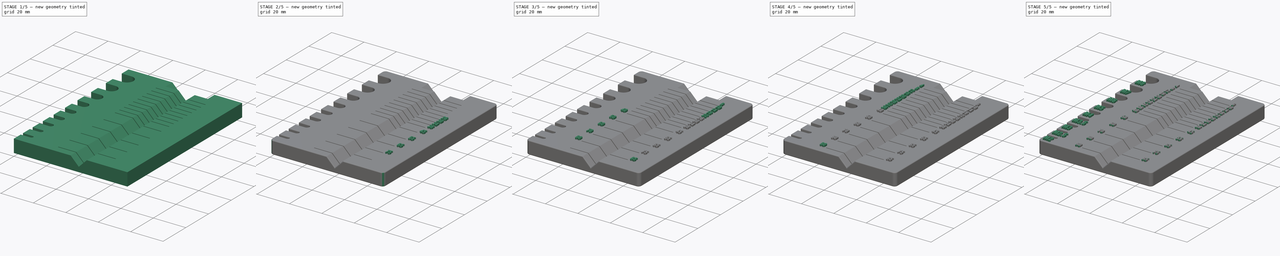
[diagram: build sequence overview — one tinted view per stage of 5, left to right]
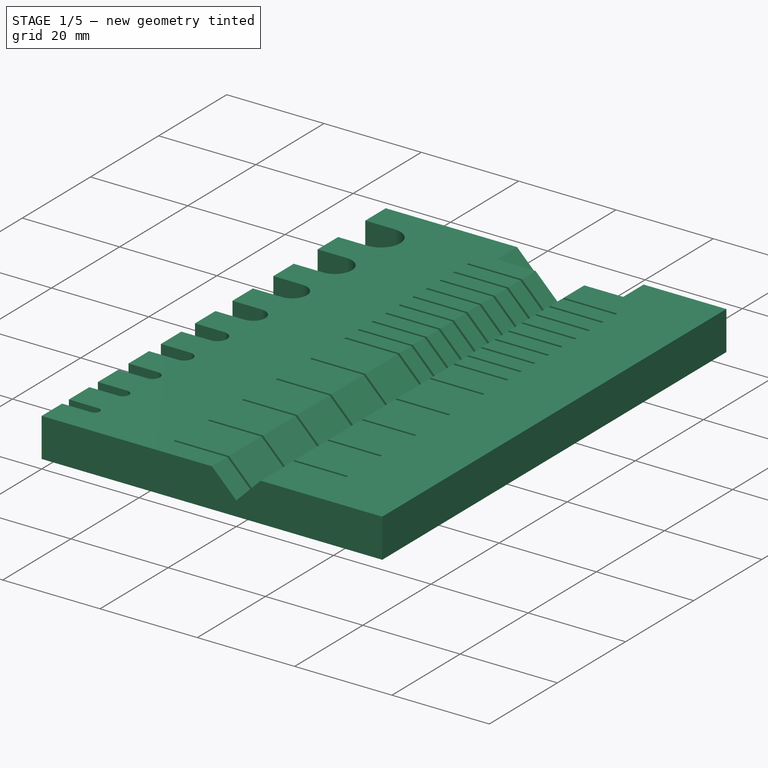
[diagram: stage 1 of 5 — iso view after this stage's code; geometry added in this stage tinted green]
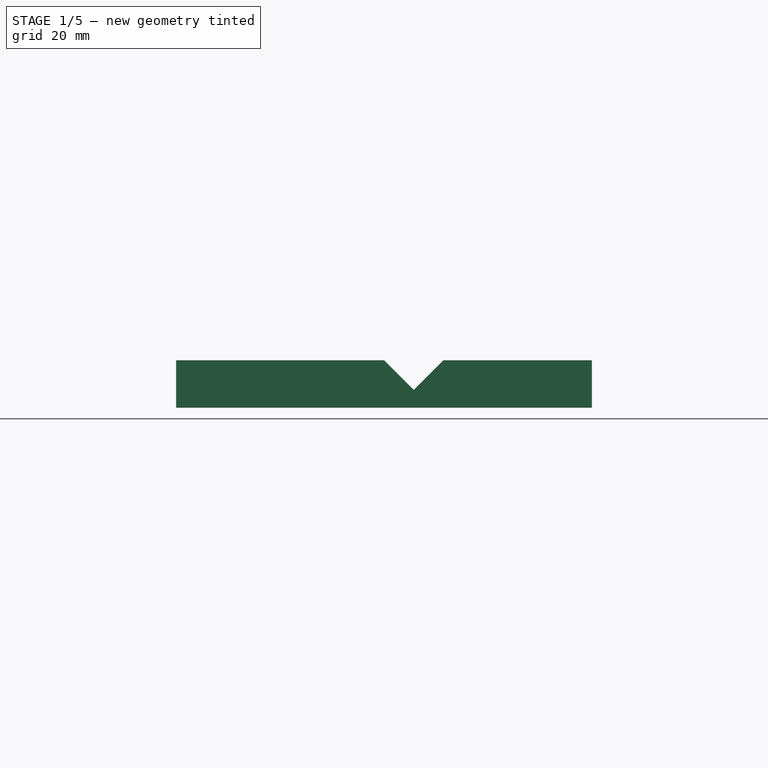
[diagram: stage 1 of 5 — front view after this stage's code; geometry added in this stage tinted green]
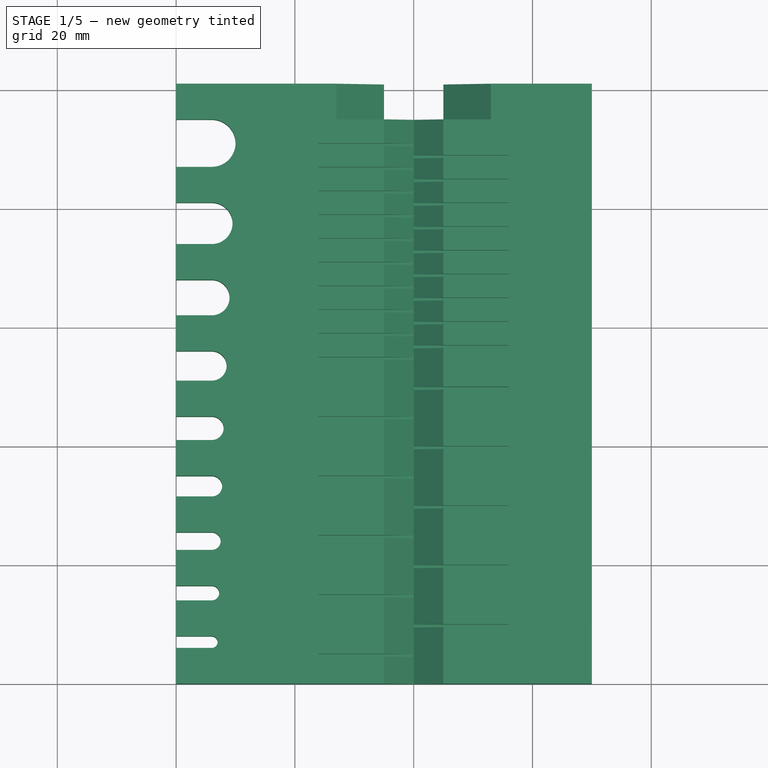
[diagram: stage 1 of 5 — top view after this stage's code; geometry added in this stage tinted green]
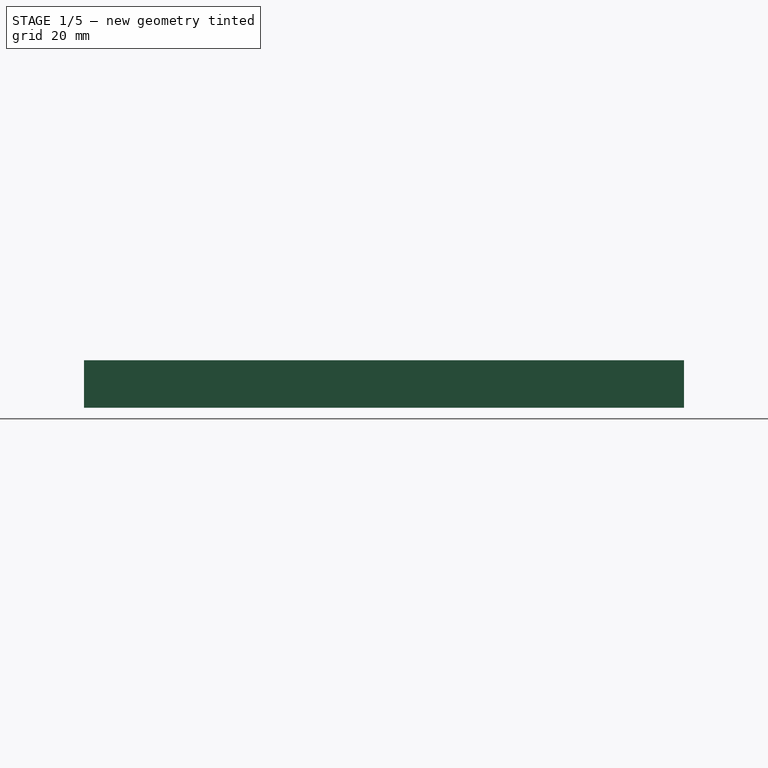
[diagram: stage 1 of 5 — right view after this stage's code; geometry added in this stage tinted green]
FCSTD DOCUMENT  (FreeCAD 0.19R24267 (Git))
Label: metric screw measure
License: All rights reserved
LicenseURL: http://en.wikipedia.org/wiki/All_rights_reserved
objects: Part::Part2DObjectPython×38, Part::Extrusion×38, Sketcher::SketchObject×7, PartDesign::Pocket×6, PartDesign::LinearPattern×4, Part::MultiFuse×2, PartDesign::Fillet×2, PartDesign::Pad×1, PartDesign::Body×1
note: 108 computed .brp shape members not serialized (recipe doc carries the construction recipe); baked Part::Feature solids carry a one-line shape summary decoded from their .brp

FEATURE [Sketcher::SketchObject] Sketch
  FullyConstrained = true
  MapMode = 5
  Support = -> [XY_Plane]
  sketch-geometry (48):
    g0: ArcOfCircle CenterX=6 CenterY=7 CenterZ=0 NormalX=0 NormalY=0 NormalZ=1 AngleXU=0 Radius=1 StartAngle=4.71239 EndAngle=7.85398
    g1: ArcOfCircle CenterX=6 CenterY=15.25 CenterZ=0 NormalX=0 NormalY=0 NormalZ=1 AngleXU=0 Radius=1.25 StartAngle=4.71239 EndAngle=7.85398
    g2: ArcOfCircle CenterX=6 CenterY=24 CenterZ=0 NormalX=0 NormalY=0 NormalZ=1 AngleXU=0 Radius=1.5 StartAngle=4.71239 EndAngle=7.85398
    g3: ArcOfCircle CenterX=6 CenterY=33.25 CenterZ=0 NormalX=0 NormalY=0 NormalZ=1 AngleXU=0 Radius=1.75 StartAngle=4.71239 EndAngle=7.85398
    g4: ArcOfCircle CenterX=6 CenterY=43 CenterZ=0 NormalX=0 NormalY=0 NormalZ=1 AngleXU=0 Radius=2 StartAngle=4.71239 EndAngle=7.85398
    g5: ArcOfCircle CenterX=6 CenterY=53.5 CenterZ=0 NormalX=0 NormalY=0 NormalZ=1 AngleXU=0 Radius=2.5 StartAngle=4.71239 EndAngle=7.85398
    g6: ArcOfCircle CenterX=6 CenterY=65 CenterZ=0 NormalX=0 NormalY=0 NormalZ=1 AngleXU=0 Radius=3 StartAngle=4.71239 EndAngle=7.85398
    g7: ArcOfCircle CenterX=6 CenterY=77.5 CenterZ=0 NormalX=0 NormalY=0 NormalZ=1 AngleXU=0 Radius=3.5 StartAngle=4.71239 EndAngle=7.85398
    g8: ArcOfCircle CenterX=6 CenterY=91 CenterZ=0 NormalX=0 NormalY=0 NormalZ=1 AngleXU=0 Radius=4 StartAngle=4.71239 EndAngle=7.85398
    g9: LineSegment StartX=6 StartY=8 StartZ=0 EndX=6 EndY=14 EndZ=0
    g10: LineSegment StartX=6 StartY=16.5 StartZ=0 EndX=6 EndY=22.5 EndZ=0
    g11: LineSegment StartX=6 StartY=25.5 StartZ=0 EndX=6 EndY=31.5 EndZ=0
    g12: LineSegment StartX=6 StartY=35 StartZ=0 EndX=6 EndY=41 EndZ=0
    g13: LineSegment StartX=6 StartY=45 StartZ=0 EndX=6 EndY=51 EndZ=0
    g14: LineSegment StartX=6 StartY=56 StartZ=0 EndX=6 EndY=62 EndZ=0
    g15: LineSegment StartX=6 StartY=68 StartZ=0 EndX=6 EndY=74 EndZ=0
    g16: LineSegment StartX=6 StartY=87 StartZ=0 EndX=6 EndY=81 EndZ=0
    g17: LineSegment StartX=6 StartY=8 StartZ=0 EndX=0 EndY=8 EndZ=0
    g18: LineSegment StartX=0 StartY=8 StartZ=0 EndX=0 EndY=14 EndZ=0
    g19: LineSegment StartX=0 StartY=14 StartZ=0 EndX=6 EndY=14 EndZ=0
    g20: LineSegment StartX=6 StartY=16.5 StartZ=0 EndX=0 EndY=16.5 EndZ=0
    g21: LineSegment StartX=0 StartY=16.5 StartZ=0 EndX=0 EndY=22.5 EndZ=0
    g22: LineSegment StartX=0 StartY=22.5 StartZ=0 EndX=6 EndY=22.5 EndZ=0
    g23: LineSegment StartX=6 StartY=25.5 StartZ=0 EndX=0 EndY=25.5 EndZ=0
    g24: LineSegment StartX=0 StartY=25.5 StartZ=0 EndX=0 EndY=31.5 EndZ=0
    g25: LineSegment StartX=0 StartY=31.5 StartZ=0 EndX=6 EndY=31.5 EndZ=0
    g26: LineSegment StartX=6 StartY=35 StartZ=0 EndX=0 EndY=35 EndZ=0
    g27: LineSegment StartX=0 StartY=35 StartZ=0 EndX=0 EndY=41 EndZ=0
    g28: LineSegment StartX=0 StartY=41 StartZ=0 EndX=6 EndY=41 EndZ=0
    g29: LineSegment StartX=6 StartY=45 StartZ=0 EndX=0 EndY=45 EndZ=0
    g30: LineSegment StartX=0 StartY=45 StartZ=0 EndX=0 EndY=51 EndZ=0
    g31: LineSegment StartX=0 StartY=51 StartZ=0 EndX=6 EndY=51 EndZ=0
    g32: LineSegment StartX=6 StartY=56 StartZ=0 EndX=0 EndY=56 EndZ=0
    g33: LineSegment StartX=0 StartY=56 StartZ=0 EndX=0 EndY=62 EndZ=0
    g34: LineSegment StartX=0 StartY=62 StartZ=0 EndX=6 EndY=62 EndZ=0
    g35: LineSegment StartX=6 StartY=68 StartZ=0 EndX=0 EndY=68 EndZ=0
    g36: LineSegment StartX=0 StartY=68 StartZ=0 EndX=0 EndY=74 EndZ=0
    g37: LineSegment StartX=0 StartY=74 StartZ=0 EndX=6 EndY=74 EndZ=0
    g38: LineSegment StartX=6 StartY=81 StartZ=0 EndX=0 EndY=81 EndZ=0
    g39: LineSegment StartX=0 StartY=81 StartZ=0 EndX=0 EndY=87 EndZ=0
    g40: LineSegment StartX=0 StartY=87 StartZ=0 EndX=6 EndY=87 EndZ=0
    g41: LineSegment StartX=6 StartY=95 StartZ=0 EndX=0 EndY=95 EndZ=0
    g42: LineSegment StartX=0 StartY=95 StartZ=0 EndX=0 EndY=101 EndZ=0
    g43: LineSegment StartX=6 StartY=6 StartZ=0 EndX=0 EndY=6 EndZ=0
    g44: LineSegment StartX=0 StartY=6 StartZ=0 EndX=0 EndY=0 EndZ=0
    g45: LineSegment StartX=0 StartY=101 StartZ=0 EndX=70 EndY=101 EndZ=0
    g46: LineSegment StartX=70 StartY=101 StartZ=0 EndX=70 EndY=0 EndZ=0
    g47: LineSegment StartX=70 StartY=0 StartZ=0 EndX=0 EndY=0 EndZ=0
  constraints (136):
    c: Vertical(g6,g6)
    c: Vertical(g6,g5)
    c: Vertical(g5,g6)
    c: Vertical(g6,g5)
    c: Vertical(g5,g5)
    c: Vertical(g5,g4)
    c: Vertical(g4,g4)
    c: Vertical(g4,g3)
    c: Vertical(g3,g4)
    c: Vertical(g4,g3)
    c: Vertical(g3,g3)
    c: Vertical(g3,g2)
    c: Vertical(g2,g2)
    c: Vertical(g2,g2)
    c: Vertical(g2,g1)
    c: Vertical(g1,g1)
    c: Vertical(g1,g1)
    c: Vertical(g1,g0)
    c: Vertical(g0,g0)
    c: Vertical(g0,g0)
    c: Diameter(g0) = 2
    c: Diameter(g1) = 2.5
    c: Diameter(g2) = 3
    c: Diameter(g3) = 3.5
    c: Diameter(g4) = 4
    c: Diameter(g5) = 5
    c: Diameter(g6) = 6
    c: Vertical(g8,g8)
    c: Vertical(g8,g8)
    c: Vertical(g8,g7)
    c: Vertical(g7,g7)
    c: Vertical(g7,g7)
    c: Vertical(g7,g6)
    c: Diameter(g7) = 7
    c: Diameter(g8) = 8
    c: Coincident(g9,g0)
    c: Coincident(g9,g1)
    c: Coincident(g10,g1)
    c: Coincident(g10,g2)
    c: Coincident(g11,g2)
    c: Coincident(g11,g3)
    c: Coincident(g12,g3)
    c: Coincident(g12,g4)
    c: Coincident(g13,g4)
    c: Coincident(g13,g5)
    c: Coincident(g14,g5)
    c: Coincident(g14,g6)
    c: Coincident(g15,g6)
    c: Coincident(g15,g7)
    c: Coincident(g16,g8)
    c: Coincident(g16,g7)
    c: Equal(g16,g15)
    c: Equal(g15,g14)
    c: Equal(g14,g13)
    c: Equal(g13,g12)
    c: Equal(g12,g11)
    c: Equal(g11,g10)
    c: Equal(g10,g9)
    c: DistanceY(g9,g9) = 6
    c: DistanceY(g0) = 6
    c: DistanceX(g0) = 6
    c: Tangent(g0,g17) = -1.5708
    c: Coincident(g17,g18)
    c: PointOnObject(g18,g-2)
    c: Vertical(g18)
    c: Coincident(g18,g19)
    c: Coincident(g19,g1)
    c: Horizontal(g19)
    c: Tangent(g1,g20) = -1.5708
    c: Coincident(g20,g21)
    c: PointOnObject(g21,g-2)
    c: Vertical(g21)
    c: Coincident(g21,g22)
    c: Coincident(g22,g2)
    c: Horizontal(g22)
    c: Tangent(g2,g23) = -1.5708
    c: Coincident(g23,g24)
    c: PointOnObject(g24,g-2)
    c: Vertical(g24)
    c: Coincident(g24,g25)
    c: Coincident(g25,g3)
    c: Horizontal(g25)
    c: Tangent(g3,g26) = -1.5708
    c: Coincident(g26,g27)
    c: PointOnObject(g27,g-2)
    c: Vertical(g27)
    c: Coincident(g27,g28)
    c: Coincident(g28,g4)
    c: Horizontal(g28)
    c: Tangent(g4,g29) = -1.5708
    c: Coincident(g29,g30)
    c: PointOnObject(g30,g-2)
    c: Vertical(g30)
    c: Coincident(g30,g31)
    c: Coincident(g31,g5)
    c: Horizontal(g31)
    c: Tangent(g5,g32) = -1.5708
    c: Coincident(g32,g33)
    c: PointOnObject(g33,g-2)
    c: Vertical(g33)
    c: Coincident(g33,g34)
    c: Coincident(g34,g6)
    c: Horizontal(g34)
    c: Tangent(g6,g35) = -1.5708
    c: Coincident(g35,g36)
    c: PointOnObject(g36,g-2)
    c: Vertical(g36)
    c: Coincident(g36,g37)
    c: Coincident(g37,g7)
    c: Horizontal(g37)
    c: Coincident(g38,g7)
    c: PointOnObject(g38,g-2)
    c: Horizontal(g38)
    c: Coincident(g39,g38)
    c: PointOnObject(g39,g-2)
    c: Coincident(g40,g39)
    c: Coincident(g40,g8)
    c: Horizontal(g40)
    c: Coincident(g41,g8)
    c: PointOnObject(g41,g-2)
    c: Horizontal(g41)
    c: Coincident(g42,g41)
    c: PointOnObject(g42,g-2)
    c: Tangent(g0,g43) = 1.5708
    c: Coincident(g43,g44)
    c: Coincident(g44,g-1)
    c: Vertical(g44)
    c: Equal(g42,g44)
    c: Coincident(g42,g45)
    c: Horizontal(g45)
    c: Coincident(g45,g46)
    c: PointOnObject(g46,g-1)
    c: Vertical(g46)
    c: Coincident(g46,g47)
    c: Coincident(g47,g44)
    c: DistanceX(g45,g45) = 70
FEATURE [PartDesign::Pad] Pad
  Direction = (1,1,1)
  Length = 8
  Length2 = 100
  Profile = -> Sketch
  Type = 0
FEATURE [Sketcher::SketchObject] Sketch001
  FullyConstrained = true
  MapMode = 5
  Placement = pos=(0,0,0) rot=(1,0,0;1.5708rad)
  Support = -> [XZ_Plane]
  sketch-geometry (3):
    g0: LineSegment StartX=35 StartY=8 StartZ=0 EndX=40 EndY=3 EndZ=0
    g1: LineSegment StartX=40 StartY=3 StartZ=0 EndX=45 EndY=8 EndZ=0
    g2: LineSegment StartX=45 StartY=8 StartZ=0 EndX=35 EndY=8 EndZ=0
  constraints (9):
    c: Coincident(g1,g0)
    c: Coincident(g2,g1)
    c: Coincident(g2,g0)
    c: Horizontal(g2)
    c: Angle(g1,g0) = 1.5708
    c: DistanceY(g0) = 8
    c: Angle(g0,g2) = 0.785398
    c: DistanceY(g0) = 3
    c: DistanceX(g0) = 40
FEATURE [PartDesign::Pocket] Pocket
  BaseFeature = -> Pad
  Length = 5
  Length2 = 100
  Profile = -> Sketch001
  Type = 1
FEATURE [Sketcher::SketchObject] Sketch002
  AttachmentOffset = pos=(0,0,101) rot=(0,0,1;0rad)
  FullyConstrained = true
  MapMode = 5
  Placement = pos=(0,101,2.24e-14) rot=(0,0.707107,0.707107;3.14159rad)
  Support = -> [XZ_Plane]
  sketch-geometry (3):
    g0: LineSegment StartX=-53 StartY=8 StartZ=0 EndX=-40 EndY=-5 EndZ=0
    g1: LineSegment StartX=-27 StartY=8 StartZ=0 EndX=-40 EndY=-5 EndZ=0
    g2: LineSegment StartX=-53 StartY=8 StartZ=0 EndX=-27 EndY=8 EndZ=0
  constraints (9):
    c: Coincident(g1,g0)
    c: Coincident(g2,g0)
    c: Coincident(g2,g1)
    c: Horizontal(g2)
    c: DistanceY(g1) = 8
    c: DistanceX(g0) = -40
    c: Perpendicular(g0,g1)
    c: Equal(g0,g1)
    c: DistanceY(g0) = -5
FEATURE [PartDesign::Pocket] Pocket001
  BaseFeature = -> Pocket
  Length = 6
  Length2 = 100
  Profile = -> Sketch002
  Type = 0
FEATURE [Sketcher::SketchObject] Sketch003
  ExternalGeometry = -> [Pocket001]
  FullyConstrained = true
  MapMode = 5
  Placement = pos=(0,0,8) rot=(0,0,1;0rad)
  Support = -> [Pocket001]
  sketch-geometry (4):
    g0: LineSegment StartX=40 StartY=91 StartZ=0 EndX=24 EndY=91 EndZ=0
    g1: LineSegment StartX=24 StartY=91 StartZ=0 EndX=24 EndY=90.5 EndZ=0
    g2: LineSegment StartX=24 StartY=90.5 StartZ=0 EndX=40 EndY=90.5 EndZ=0
    g3: LineSegment StartX=40 StartY=90.5 StartZ=0 EndX=40 EndY=91 EndZ=0
  constraints (12):
    c: Horizontal(g0)
    c: Coincident(g0,g1)
    c: Vertical(g1)
    c: Coincident(g1,g2)
    c: Horizontal(g2)
    c: Coincident(g2,g3)
    c: Coincident(g3,g0)
    c: DistanceY(g1,g1) = 0.5
    c: DistanceX(g2,g2) = 16
    c: Vertical(g3)
    c: PointOnObject(g0,g-5)
    c: DistanceY(g0,g-5) = 4
FEATURE [PartDesign::Pocket] Pocket002
  BaseFeature = -> Pocket001
  Length = 5
  Length2 = 100
  Profile = -> Sketch003
  Type = 0
FEATURE [PartDesign::LinearPattern] LinearPattern
  BaseFeature = -> Pocket002
  Direction = -> Sketch003 [V_Axis]
  Length = 36
  Occurrences = 10
  Originals = -> [Pocket002]
  Reversed = true
FEATURE [Sketcher::SketchObject] Sketch004
  ExternalGeometry = -> [LinearPattern]
  FullyConstrained = true
  MapMode = 5
  Placement = pos=(0,0,8) rot=(0,0,1;0rad)
  Support = -> [LinearPattern]
  sketch-geometry (4):
    g0: LineSegment StartX=40 StartY=89 StartZ=0 EndX=56 EndY=89 EndZ=0
    g1: LineSegment StartX=56 StartY=89 StartZ=0 EndX=56 EndY=88.5 EndZ=0
    g2: LineSegment StartX=56 StartY=88.5 StartZ=0 EndX=40 EndY=88.5 EndZ=0
    g3: LineSegment StartX=40 StartY=88.5 StartZ=0 EndX=40 EndY=89 EndZ=0
  constraints (12):
    c: Coincident(g0,g1)
    c: Coincident(g1,g2)
    c: Coincident(g2,g3)
    c: Coincident(g3,g0)
    c: Horizontal(g0)
    c: Horizontal(g2)
    c: Vertical(g1)
    c: Vertical(g3)
    c: PointOnObject(g0,g-3)
    c: DistanceX(g0,g0) = 16
    c: DistanceY(g1,g1) = 0.5
    c: DistanceY(g0,g-3) = 6
FEATURE [PartDesign::Pocket] Pocket003
  BaseFeature = -> LinearPattern
  Length = 5
  Length2 = 100
  Profile = -> Sketch004
  Type = 0
FEATURE [PartDesign::LinearPattern] LinearPattern001
  BaseFeature = -> Pocket003
  Direction = -> Sketch004 [V_Axis]
  Length = 32
  Occurrences = 9
  Originals = -> [Pocket003]
  Reversed = true
FEATURE [Sketcher::SketchObject] Sketch005
  ExternalGeometry = -> [LinearPattern001]
  FullyConstrained = true
  MapMode = 5
  Placement = pos=(0,0,8) rot=(0,0,1;0rad)
  Support = -> [LinearPattern001]
  sketch-geometry (4):
    g0: LineSegment StartX=24 StartY=45 StartZ=0 EndX=40 EndY=45 EndZ=0
    g1: LineSegment StartX=40 StartY=45 StartZ=0 EndX=40 EndY=44.5 EndZ=0
    g2: LineSegment StartX=40 StartY=44.5 StartZ=0 EndX=24 EndY=44.5 EndZ=0
    g3: LineSegment StartX=24 StartY=44.5 StartZ=0 EndX=24 EndY=45 EndZ=0
  constraints (12):
    c: Coincident(g0,g1)
    c: Coincident(g1,g2)
    c: Coincident(g2,g3)
    c: Coincident(g3,g0)
    c: Horizontal(g0)
    c: Horizontal(g2)
    c: Vertical(g1)
    c: Vertical(g3)
    c: Vertical(g0,g-3)
    c: DistanceY(g0,g-3) = 50
    c: DistanceY(g1,g1) = 0.5
    c: DistanceX(g2,g2) = 16
FEATURE [PartDesign::Pocket] Pocket004
  BaseFeature = -> LinearPattern001
  Length = 5
  Length2 = 100
  Profile = -> Sketch005
  Type = 0
FEATURE [PartDesign::LinearPattern] LinearPattern002
  BaseFeature = -> Pocket004
  Direction = -> Sketch005 [V_Axis]
  Length = 40
  Occurrences = 5
  Originals = -> [Pocket004]
  Reversed = true
FEATURE [Sketcher::SketchObject] Sketch006
  ExternalGeometry = -> [LinearPattern002]
  FullyConstrained = true
  MapMode = 5
  Placement = pos=(0,0,8) rot=(0,0,1;0rad)
  Support = -> [LinearPattern002]
  sketch-geometry (4):
    g0: LineSegment StartX=40 StartY=50 StartZ=0 EndX=56 EndY=50 EndZ=0
    g1: LineSegment StartX=56 StartY=50 StartZ=0 EndX=56 EndY=49.5 EndZ=0
    g2: LineSegment StartX=56 StartY=49.5 StartZ=0 EndX=40 EndY=49.5 EndZ=0
    g3: LineSegment StartX=40 StartY=49.5 StartZ=0 EndX=40 EndY=50 EndZ=0
  constraints (12):
    c: Coincident(g0,g1)
    c: Coincident(g1,g2)
    c: Coincident(g2,g3)
    c: Coincident(g3,g0)
    c: Horizontal(g0)
    c: Horizontal(g2)
    c: Vertical(g1)
    c: Vertical(g3)
    c: DistanceX(g2,g2) = 16
    c: Vertical(g0,g-3)
    c: DistanceY(g0,g-3) = 45
    c: DistanceY(g1,g1) = 0.5
FEATURE [PartDesign::Pocket] Pocket005
  BaseFeature = -> LinearPattern002
  Length = 5
  Length2 = 100
  Profile = -> Sketch006
  Type = 0
FEATURE [PartDesign::LinearPattern] LinearPattern003
  BaseFeature = -> Pocket005
  Direction = -> Sketch006 [V_Axis]
  Length = 40
  Occurrences = 5
  Originals = -> [Pocket005]
  Reversed = true
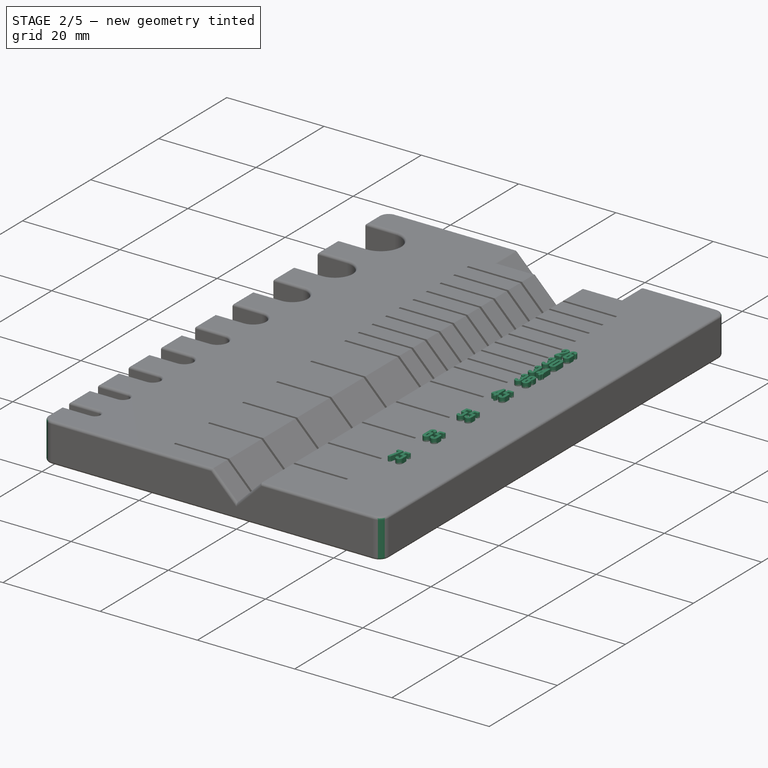
[diagram: stage 2 of 5 — iso view after this stage's code; geometry added in this stage tinted green]
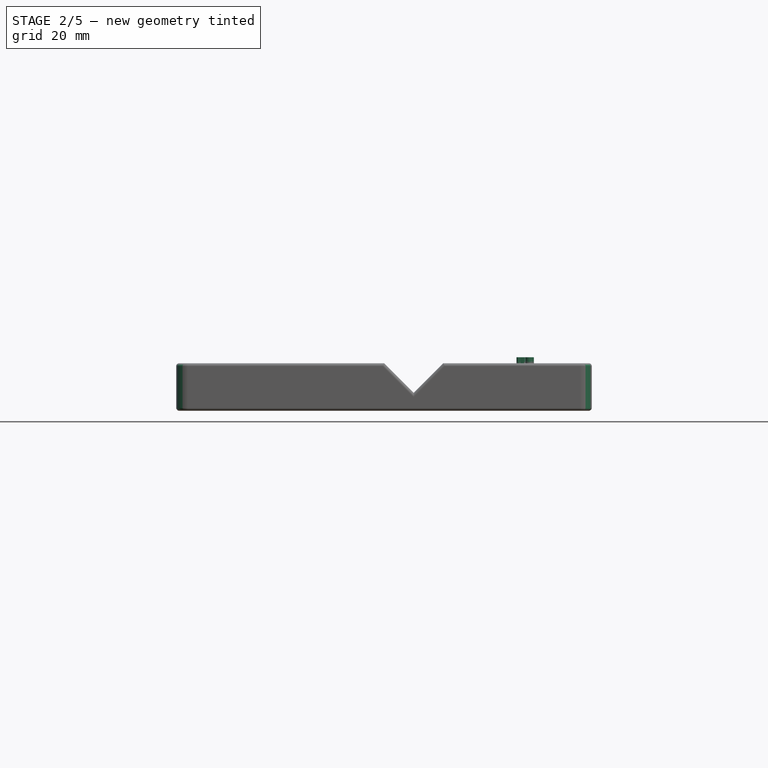
[diagram: stage 2 of 5 — front view after this stage's code; geometry added in this stage tinted green]
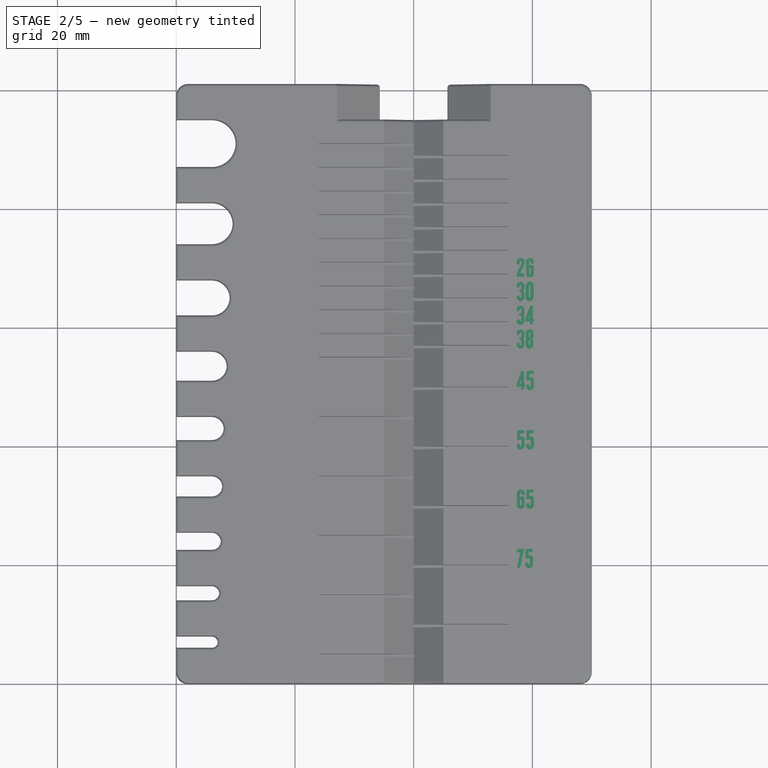
[diagram: stage 2 of 5 — top view after this stage's code; geometry added in this stage tinted green]
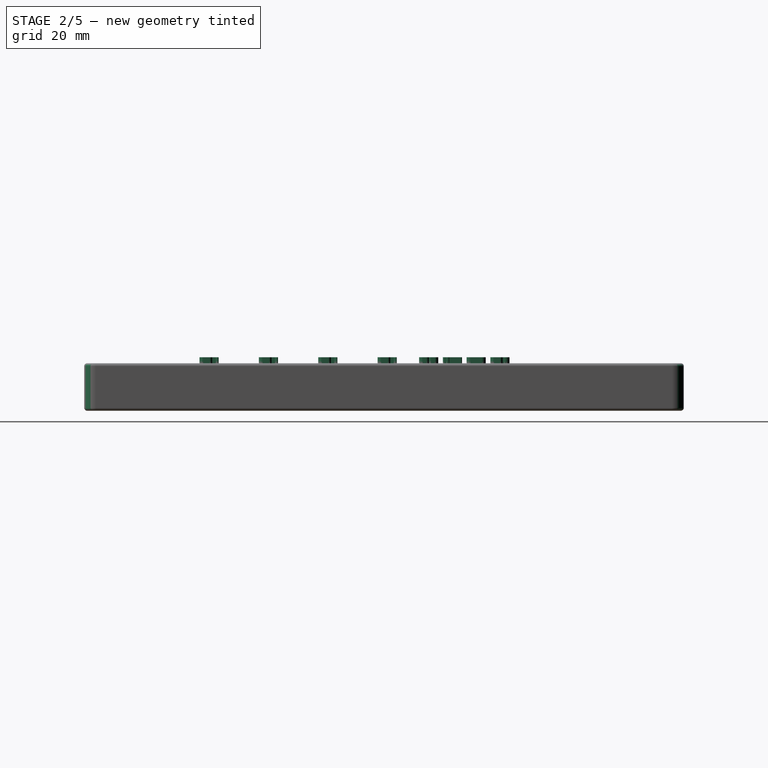
[diagram: stage 2 of 5 — right view after this stage's code; geometry added in this stage tinted green]
FEATURE [Part::Extrusion] Extrude031
  Base = -> ShapeString031
  Dir = (0,0,1)
  DirMode = 2
  FaceMakerClass = Part::FaceMakerBullseye
  LengthFwd = 1
  LengthRev = 0
  Solid = false
  Symmetric = false
FEATURE [Part::Extrusion] Extrude032
  Base = -> ShapeString032
  Dir = (0,0,1)
  DirMode = 2
  FaceMakerClass = Part::FaceMakerBullseye
  LengthFwd = 1
  LengthRev = 0
  Solid = false
  Symmetric = false
FEATURE [Part::Extrusion] Extrude033
  Base = -> ShapeString033
  Dir = (0,0,1)
  DirMode = 2
  FaceMakerClass = Part::FaceMakerBullseye
  LengthFwd = 1
  LengthRev = 0
  Solid = false
  Symmetric = false
FEATURE [Part::Extrusion] Extrude034
  Base = -> ShapeString034
  Dir = (0,0,1)
  DirMode = 2
  FaceMakerClass = Part::FaceMakerBullseye
  LengthFwd = 1
  LengthRev = 0
  Solid = false
  Symmetric = false
FEATURE [Part::Extrusion] Extrude035
  Base = -> ShapeString035
  Dir = (0,0,1)
  DirMode = 2
  FaceMakerClass = Part::FaceMakerBullseye
  LengthFwd = 1
  LengthRev = 0
  Solid = false
  Symmetric = false
FEATURE [Part::Extrusion] Extrude036
  Base = -> ShapeString036
  Dir = (0,0,1)
  DirMode = 2
  FaceMakerClass = Part::FaceMakerBullseye
  LengthFwd = 1
  LengthRev = 0
  Solid = false
  Symmetric = false
FEATURE [Part::Extrusion] Extrude037
  Base = -> ShapeString037
  Dir = (0,0,1)
  DirMode = 2
  FaceMakerClass = Part::FaceMakerBullseye
  LengthFwd = 1
  LengthRev = 0
  Solid = false
  Symmetric = false
FEATURE [Part::Extrusion] Extrude038
  Base = -> ShapeString038
  Dir = (0,0,1)
  DirMode = 2
  FaceMakerClass = Part::FaceMakerBullseye
  LengthFwd = 1
  LengthRev = 0
  Solid = false
  Symmetric = false
FEATURE [PartDesign::Fillet] Fillet
  Base = -> LinearPattern003 [Edge168,Edge151,Edge156,Edge157]
  BaseFeature = -> LinearPattern003
  Radius = 2
  SupportTransform = false
FEATURE [PartDesign::Fillet] Fillet001
  Base = -> Fillet [Edge95,Edge107,Edge119,Edge123,Edge135,Edge139,Edge150,Edge149,Edge137,Edge133,Edge121,Edge117,Edge105,Edge101,Edge89,Edge82,Edge70,Edge66,Edge51,Edge60,Edge59,Edge57,Edge80,Edge83,Edge84,Edge85,Edge86,Edge91,Edge14,Edge75,Edge90,Edge18,Edge16,Edge12,Edge7,Edge9,Edge17,Edge23,Edge15,Face1]
  BaseFeature = -> Fillet
  Radius = 0.5
  SupportTransform = false
FEATURE [PartDesign::Body] Body
  Group = -> [Sketch,Pad,Sketch001,Pocket,Sketch002,Pocket001,Sketch003,Pocket002,LinearPattern,Sketch004,Pocket003,LinearPattern001,Sketch005,Pocket004,LinearPattern002,Sketch006,Pocket005,LinearPattern003,Fillet,Fillet001]
  Origin = -> Origin
  Tip = -> Fillet001
note: 38 file-system paths scrubbed to <path> (originals preserved in the JSON sidecar)
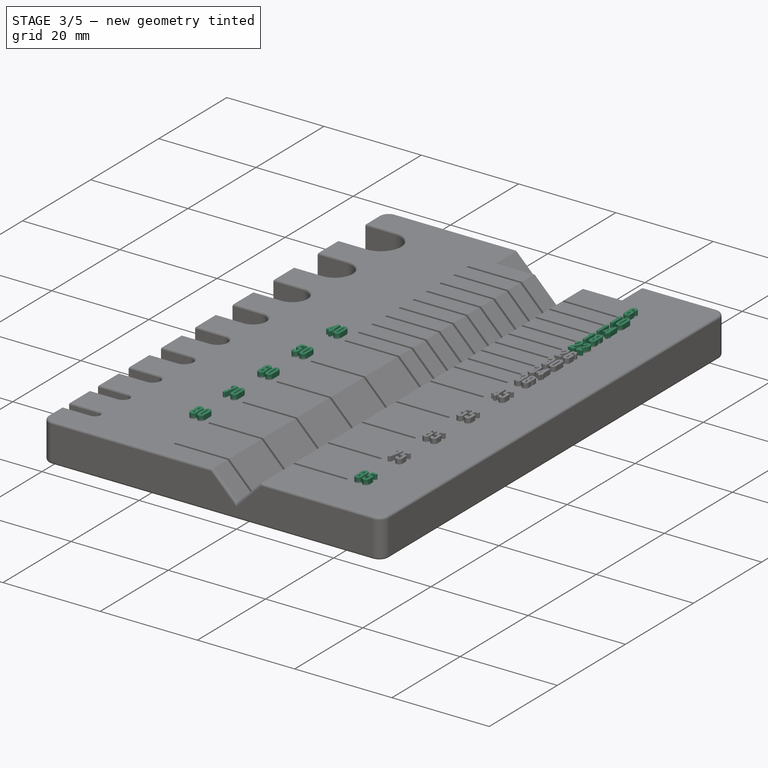
[diagram: stage 3 of 5 — iso view after this stage's code; geometry added in this stage tinted green]
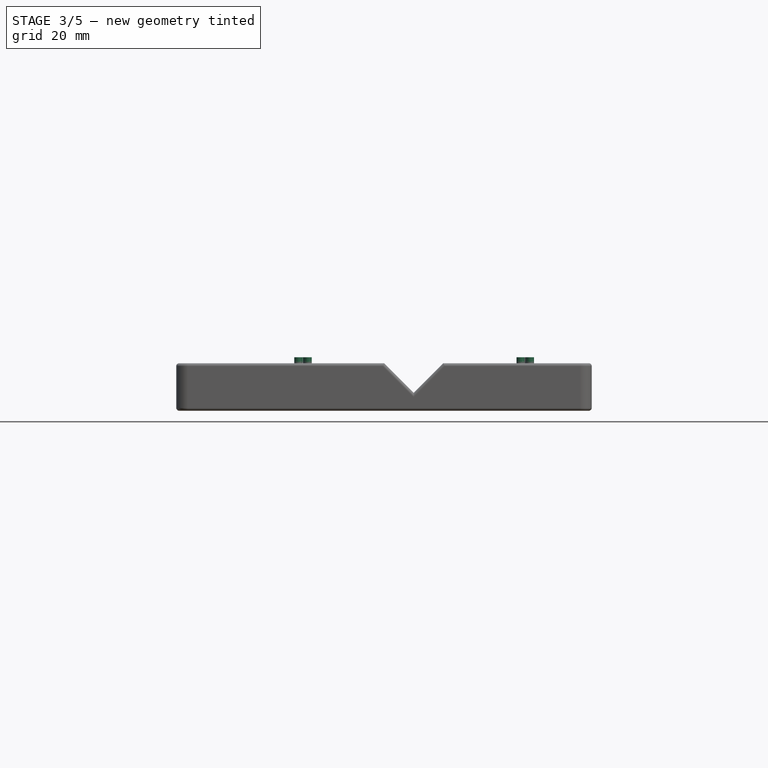
[diagram: stage 3 of 5 — front view after this stage's code; geometry added in this stage tinted green]
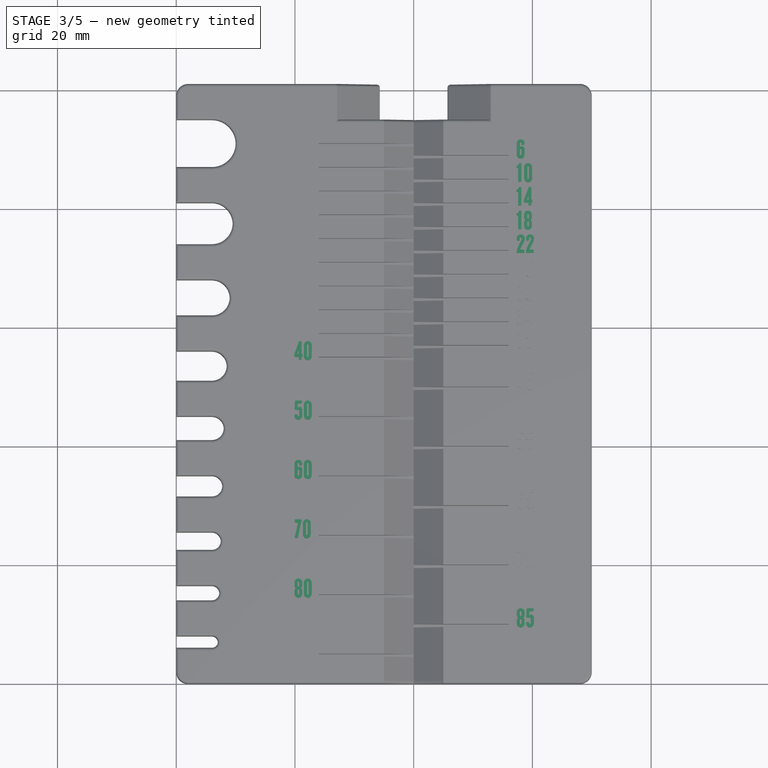
[diagram: stage 3 of 5 — top view after this stage's code; geometry added in this stage tinted green]
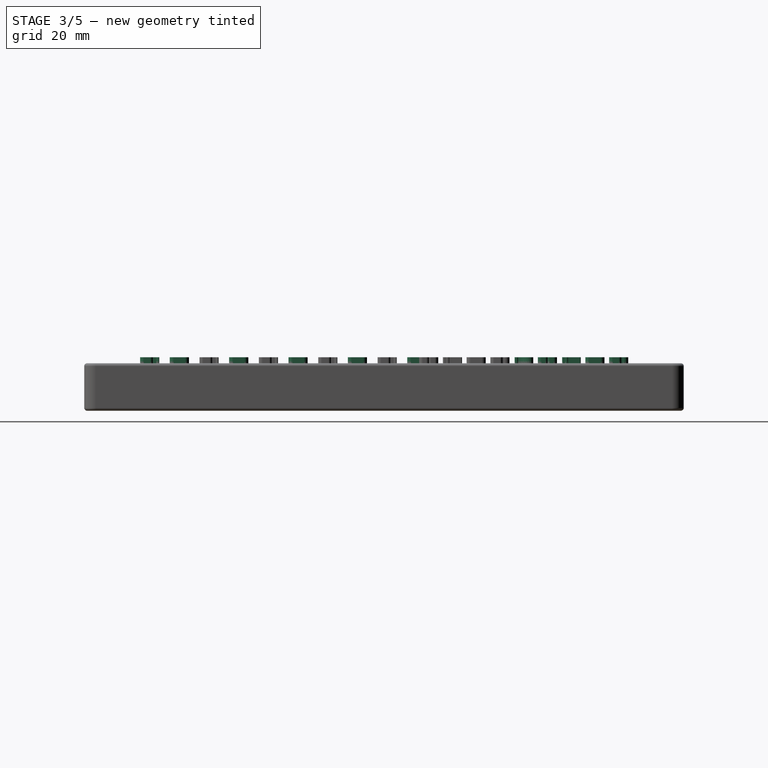
[diagram: stage 3 of 5 — right view after this stage's code; geometry added in this stage tinted green]
FEATURE [Part::Extrusion] Extrude020
  Base = -> ShapeString020
  Dir = (0,0,1)
  DirMode = 2
  FaceMakerClass = Part::FaceMakerBullseye
  LengthFwd = 1
  LengthRev = 0
  Solid = false
  Symmetric = false
FEATURE [Part::Extrusion] Extrude021
  Base = -> ShapeString021
  Dir = (0,0,1)
  DirMode = 2
  FaceMakerClass = Part::FaceMakerBullseye
  LengthFwd = 1
  LengthRev = 0
  Solid = false
  Symmetric = false
FEATURE [Part::Extrusion] Extrude022
  Base = -> ShapeString022
  Dir = (0,0,1)
  DirMode = 2
  FaceMakerClass = Part::FaceMakerBullseye
  LengthFwd = 1
  LengthRev = 0
  Solid = false
  Symmetric = false
FEATURE [Part::Extrusion] Extrude023
  Base = -> ShapeString023
  Dir = (0,0,1)
  DirMode = 2
  FaceMakerClass = Part::FaceMakerBullseye
  LengthFwd = 1
  LengthRev = 0
  Solid = false
  Symmetric = false
FEATURE [Part::Extrusion] Extrude024
  Base = -> ShapeString024
  Dir = (0,0,1)
  DirMode = 2
  FaceMakerClass = Part::FaceMakerBullseye
  LengthFwd = 1
  LengthRev = 0
  Solid = false
  Symmetric = false
FEATURE [Part::Part2DObjectPython] ShapeString025  # Draft 2D object (typed FeaturePython)
  FontFile = <path> screw measure/H.H. Samuel-font-defharo.ttf
  Placement = pos=(57.25,9.5,8) rot=(0,0,1;0rad)
  Size = 1.6
  String = 85
  Tracking = 0
FEATURE [Part::Part2DObjectPython] ShapeString026  # Draft 2D object (typed FeaturePython)
  FontFile = <path> screw measure/H.H. Samuel-font-defharo.ttf
  Placement = pos=(57.25,88.5,8) rot=(0,0,1;0rad)
  Size = 1.6
  String = 6
  Tracking = 0
FEATURE [Part::Part2DObjectPython] ShapeString027  # Draft 2D object (typed FeaturePython)
  FontFile = <path> screw measure/H.H. Samuel-font-defharo.ttf
  Placement = pos=(57.25,84.5,8) rot=(0,0,1;0rad)
  Size = 1.6
  String = 10
  Tracking = 0
FEATURE [Part::Part2DObjectPython] ShapeString028  # Draft 2D object (typed FeaturePython)
  FontFile = <path> screw measure/H.H. Samuel-font-defharo.ttf
  Placement = pos=(57.25,80.5,8) rot=(0,0,1;0rad)
  Size = 1.6
  String = 14
  Tracking = 0
FEATURE [Part::Part2DObjectPython] ShapeString029  # Draft 2D object (typed FeaturePython)
  FontFile = <path> screw measure/H.H. Samuel-font-defharo.ttf
  Placement = pos=(57.25,76.5,8) rot=(0,0,1;0rad)
  Size = 1.6
  String = 18
  Tracking = 0
FEATURE [Part::Part2DObjectPython] ShapeString030  # Draft 2D object (typed FeaturePython)
  FontFile = <path> screw measure/H.H. Samuel-font-defharo.ttf
  Placement = pos=(57.25,72.5,8) rot=(0,0,1;0rad)
  Size = 1.6
  String = 22
  Tracking = 0
FEATURE [Part::Part2DObjectPython] ShapeString031  # Draft 2D object (typed FeaturePython)
  FontFile = <path> screw measure/H.H. Samuel-font-defharo.ttf
  Placement = pos=(57.25,68.5,8) rot=(0,0,1;0rad)
  Size = 1.6
  String = 26
  Tracking = 0
FEATURE [Part::Part2DObjectPython] ShapeString032  # Draft 2D object (typed FeaturePython)
  FontFile = <path> screw measure/H.H. Samuel-font-defharo.ttf
  Placement = pos=(57.25,64.5,8) rot=(0,0,1;0rad)
  Size = 1.6
  String = 30
  Tracking = 0
FEATURE [Part::Part2DObjectPython] ShapeString033  # Draft 2D object (typed FeaturePython)
  FontFile = <path> screw measure/H.H. Samuel-font-defharo.ttf
  Placement = pos=(57.25,60.5,8) rot=(0,0,1;0rad)
  Size = 1.6
  String = 34
  Tracking = 0
FEATURE [Part::Part2DObjectPython] ShapeString034  # Draft 2D object (typed FeaturePython)
  FontFile = <path> screw measure/H.H. Samuel-font-defharo.ttf
  Placement = pos=(57.25,56.5,8) rot=(0,0,1;0rad)
  Size = 1.6
  String = 38
  Tracking = 0
FEATURE [Part::Part2DObjectPython] ShapeString035  # Draft 2D object (typed FeaturePython)
  FontFile = <path> screw measure/H.H. Samuel-font-defharo.ttf
  Placement = pos=(57.25,49.5,8) rot=(0,0,1;0rad)
  Size = 1.6
  String = 45
  Tracking = 0
FEATURE [Part::Part2DObjectPython] ShapeString036  # Draft 2D object (typed FeaturePython)
  FontFile = <path> screw measure/H.H. Samuel-font-defharo.ttf
  Placement = pos=(57.25,39.5,8) rot=(0,0,1;0rad)
  Size = 1.6
  String = 55
  Tracking = 0
FEATURE [Part::Part2DObjectPython] ShapeString037  # Draft 2D object (typed FeaturePython)
  FontFile = <path> screw measure/H.H. Samuel-font-defharo.ttf
  Placement = pos=(57.25,29.5,8) rot=(0,0,1;0rad)
  Size = 1.6
  String = 65
  Tracking = 0
FEATURE [Part::Part2DObjectPython] ShapeString038  # Draft 2D object (typed FeaturePython)
  FontFile = <path> screw measure/H.H. Samuel-font-defharo.ttf
  Placement = pos=(57.25,19.5,8) rot=(0,0,1;0rad)
  Size = 1.6
  String = 75
  Tracking = 0
FEATURE [Part::Extrusion] Extrude025
  Base = -> ShapeString025
  Dir = (0,0,1)
  DirMode = 2
  FaceMakerClass = Part::FaceMakerBullseye
  LengthFwd = 1
  LengthRev = 0
  Solid = false
  Symmetric = false
FEATURE [Part::Extrusion] Extrude026
  Base = -> ShapeString026
  Dir = (0,0,1)
  DirMode = 2
  FaceMakerClass = Part::FaceMakerBullseye
  LengthFwd = 1
  LengthRev = 0
  Solid = false
  Symmetric = false
FEATURE [Part::Extrusion] Extrude027
  Base = -> ShapeString027
  Dir = (0,0,1)
  DirMode = 2
  FaceMakerClass = Part::FaceMakerBullseye
  LengthFwd = 1
  LengthRev = 0
  Solid = false
  Symmetric = false
FEATURE [Part::Extrusion] Extrude028
  Base = -> ShapeString028
  Dir = (0,0,1)
  DirMode = 2
  FaceMakerClass = Part::FaceMakerBullseye
  LengthFwd = 1
  LengthRev = 0
  Solid = false
  Symmetric = false
FEATURE [Part::Extrusion] Extrude029
  Base = -> ShapeString029
  Dir = (0,0,1)
  DirMode = 2
  FaceMakerClass = Part::FaceMakerBullseye
  LengthFwd = 1
  LengthRev = 0
  Solid = false
  Symmetric = false
FEATURE [Part::Extrusion] Extrude030
  Base = -> ShapeString030
  Dir = (0,0,1)
  DirMode = 2
  FaceMakerClass = Part::FaceMakerBullseye
  LengthFwd = 1
  LengthRev = 0
  Solid = false
  Symmetric = false
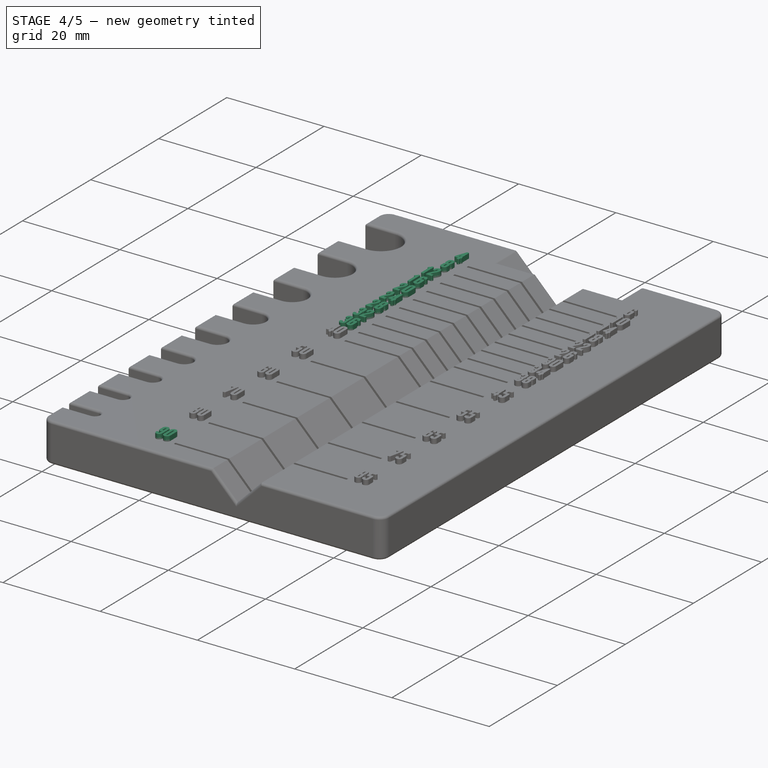
[diagram: stage 4 of 5 — iso view after this stage's code; geometry added in this stage tinted green]
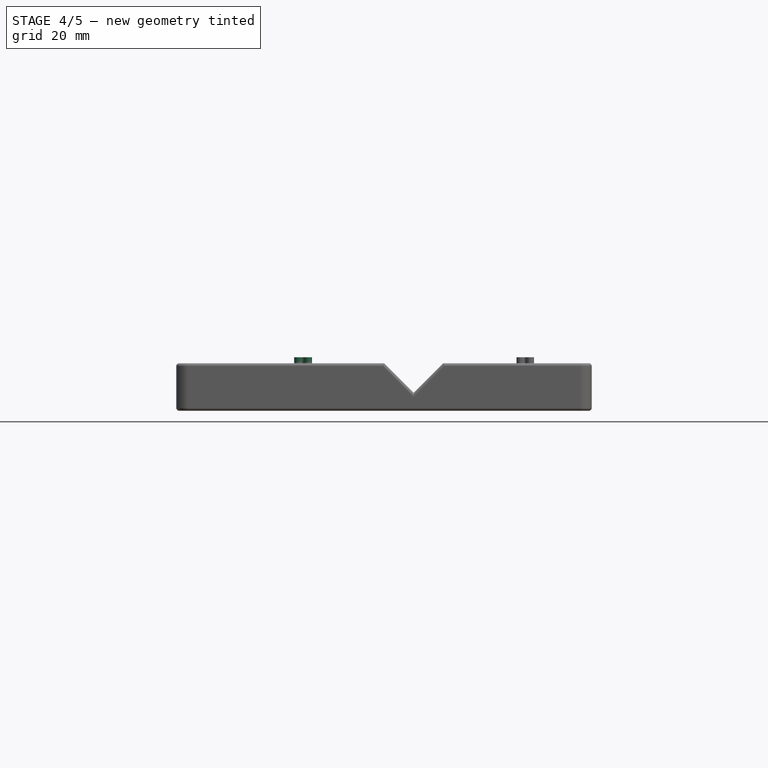
[diagram: stage 4 of 5 — front view after this stage's code; geometry added in this stage tinted green]
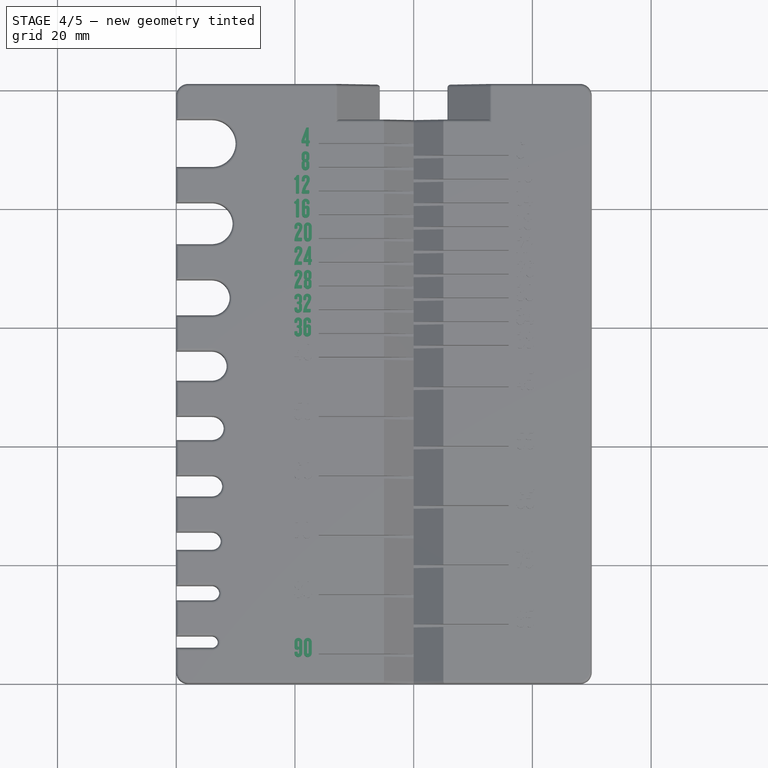
[diagram: stage 4 of 5 — top view after this stage's code; geometry added in this stage tinted green]
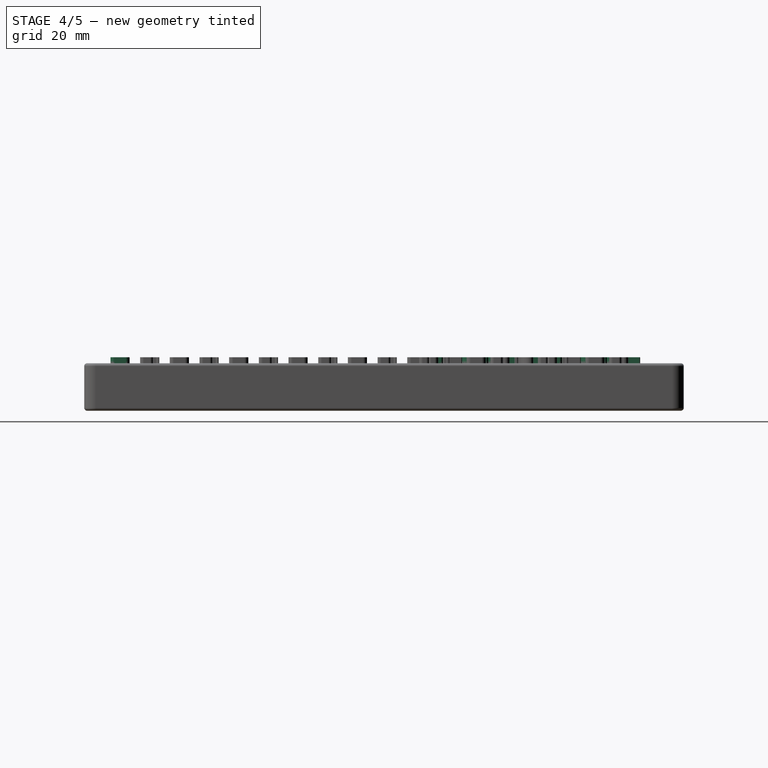
[diagram: stage 4 of 5 — right view after this stage's code; geometry added in this stage tinted green]
FEATURE [Part::Part2DObjectPython] ShapeString009  # Draft 2D object (typed FeaturePython)
  FontFile = <path> screw measure/H.H. Samuel-font-defharo.ttf
  Placement = pos=(21,90.5,8) rot=(0,0,1;0rad)
  Size = 1.6
  String = 4
  Tracking = 0
FEATURE [Part::Part2DObjectPython] ShapeString011  # Draft 2D object (typed FeaturePython)
  FontFile = <path> screw measure/H.H. Samuel-font-defharo.ttf
  Placement = pos=(21,86.5,8) rot=(0,0,1;0rad)
  Size = 1.6
  String = 8
  Tracking = 0
FEATURE [Part::Part2DObjectPython] ShapeString012  # Draft 2D object (typed FeaturePython)
  FontFile = <path> screw measure/H.H. Samuel-font-defharo.ttf
  Placement = pos=(19.8,82.5,8) rot=(0,0,1;0rad)
  Size = 1.6
  String = 12
  Tracking = 0
FEATURE [Part::Part2DObjectPython] ShapeString013  # Draft 2D object (typed FeaturePython)
  FontFile = <path> screw measure/H.H. Samuel-font-defharo.ttf
  Placement = pos=(19.8,78.5,8) rot=(0,0,1;0rad)
  Size = 1.6
  String = 16
  Tracking = 0
FEATURE [Part::Part2DObjectPython] ShapeString014  # Draft 2D object (typed FeaturePython)
  FontFile = <path> screw measure/H.H. Samuel-font-defharo.ttf
  Placement = pos=(19.8,74.5,8) rot=(0,0,1;0rad)
  Size = 1.6
  String = 20
  Tracking = 0
FEATURE [Part::Part2DObjectPython] ShapeString015  # Draft 2D object (typed FeaturePython)
  FontFile = <path> screw measure/H.H. Samuel-font-defharo.ttf
  Placement = pos=(19.8,4.5,8) rot=(0,0,1;0rad)
  Size = 1.6
  String = 90
  Tracking = 0
FEATURE [Part::Part2DObjectPython] ShapeString016  # Draft 2D object (typed FeaturePython)
  FontFile = <path> screw measure/H.H. Samuel-font-defharo.ttf
  Placement = pos=(19.8,70.5,8) rot=(0,0,1;0rad)
  Size = 1.6
  String = 24
  Tracking = 0
FEATURE [Part::Part2DObjectPython] ShapeString017  # Draft 2D object (typed FeaturePython)
  FontFile = <path> screw measure/H.H. Samuel-font-defharo.ttf
  Placement = pos=(19.8,66.5,8) rot=(0,0,1;0rad)
  Size = 1.6
  String = 28
  Tracking = 0
FEATURE [Part::Part2DObjectPython] ShapeString018  # Draft 2D object (typed FeaturePython)
  FontFile = <path> screw measure/H.H. Samuel-font-defharo.ttf
  Placement = pos=(19.8,62.5,8) rot=(0,0,1;0rad)
  Size = 1.6
  String = 32
  Tracking = 0
FEATURE [Part::Part2DObjectPython] ShapeString019  # Draft 2D object (typed FeaturePython)
  FontFile = <path> screw measure/H.H. Samuel-font-defharo.ttf
  Placement = pos=(19.8,58.5,8) rot=(0,0,1;0rad)
  Size = 1.6
  String = 36
  Tracking = 0
FEATURE [Part::Part2DObjectPython] ShapeString020  # Draft 2D object (typed FeaturePython)
  FontFile = <path> screw measure/H.H. Samuel-font-defharo.ttf
  Placement = pos=(19.8,54.5,8) rot=(0,0,1;0rad)
  Size = 1.6
  String = 40
  Tracking = 0
FEATURE [Part::Part2DObjectPython] ShapeString021  # Draft 2D object (typed FeaturePython)
  FontFile = <path> screw measure/H.H. Samuel-font-defharo.ttf
  Placement = pos=(19.8,44.5,8) rot=(0,0,1;0rad)
  Size = 1.6
  String = 50
  Tracking = 0
FEATURE [Part::Part2DObjectPython] ShapeString022  # Draft 2D object (typed FeaturePython)
  FontFile = <path> screw measure/H.H. Samuel-font-defharo.ttf
  Placement = pos=(19.8,34.5,8) rot=(0,0,1;0rad)
  Size = 1.6
  String = 60
  Tracking = 0
FEATURE [Part::Part2DObjectPython] ShapeString023  # Draft 2D object (typed FeaturePython)
  FontFile = <path> screw measure/H.H. Samuel-font-defharo.ttf
  Placement = pos=(19.8,24.5,8) rot=(0,0,1;0rad)
  Size = 1.6
  String = 70
  Tracking = 0
FEATURE [Part::Part2DObjectPython] ShapeString024  # Draft 2D object (typed FeaturePython)
  FontFile = <path> screw measure/H.H. Samuel-font-defharo.ttf
  Placement = pos=(19.8,14.5,8) rot=(0,0,1;0rad)
  Size = 1.6
  String = 80
  Tracking = 0
FEATURE [Part::Extrusion] Extrude009
  Base = -> ShapeString009
  Dir = (0,0,1)
  DirMode = 2
  FaceMakerClass = Part::FaceMakerBullseye
  LengthFwd = 1
  LengthRev = 0
  Solid = false
  Symmetric = false
FEATURE [Part::Extrusion] Extrude011
  Base = -> ShapeString011
  Dir = (0,0,1)
  DirMode = 2
  FaceMakerClass = Part::FaceMakerBullseye
  LengthFwd = 1
  LengthRev = 0
  Solid = false
  Symmetric = false
FEATURE [Part::Extrusion] Extrude012
  Base = -> ShapeString012
  Dir = (0,0,1)
  DirMode = 2
  FaceMakerClass = Part::FaceMakerBullseye
  LengthFwd = 1
  LengthRev = 0
  Solid = false
  Symmetric = false
FEATURE [Part::Extrusion] Extrude013
  Base = -> ShapeString013
  Dir = (0,0,1)
  DirMode = 2
  FaceMakerClass = Part::FaceMakerBullseye
  LengthFwd = 1
  LengthRev = 0
  Solid = false
  Symmetric = false
FEATURE [Part::Extrusion] Extrude014
  Base = -> ShapeString014
  Dir = (0,0,1)
  DirMode = 2
  FaceMakerClass = Part::FaceMakerBullseye
  LengthFwd = 1
  LengthRev = 0
  Solid = false
  Symmetric = false
FEATURE [Part::Extrusion] Extrude015
  Base = -> ShapeString015
  Dir = (0,0,1)
  DirMode = 2
  FaceMakerClass = Part::FaceMakerBullseye
  LengthFwd = 1
  LengthRev = 0
  Solid = false
  Symmetric = false
FEATURE [Part::Extrusion] Extrude016
  Base = -> ShapeString016
  Dir = (0,0,1)
  DirMode = 2
  FaceMakerClass = Part::FaceMakerBullseye
  LengthFwd = 1
  LengthRev = 0
  Solid = false
  Symmetric = false
FEATURE [Part::Extrusion] Extrude017
  Base = -> ShapeString017
  Dir = (0,0,1)
  DirMode = 2
  FaceMakerClass = Part::FaceMakerBullseye
  LengthFwd = 1
  LengthRev = 0
  Solid = false
  Symmetric = false
FEATURE [Part::Extrusion] Extrude018
  Base = -> ShapeString018
  Dir = (0,0,1)
  DirMode = 2
  FaceMakerClass = Part::FaceMakerBullseye
  LengthFwd = 1
  LengthRev = 0
  Solid = false
  Symmetric = false
FEATURE [Part::Extrusion] Extrude019
  Base = -> ShapeString019
  Dir = (0,0,1)
  DirMode = 2
  FaceMakerClass = Part::FaceMakerBullseye
  LengthFwd = 1
  LengthRev = 0
  Solid = false
  Symmetric = false
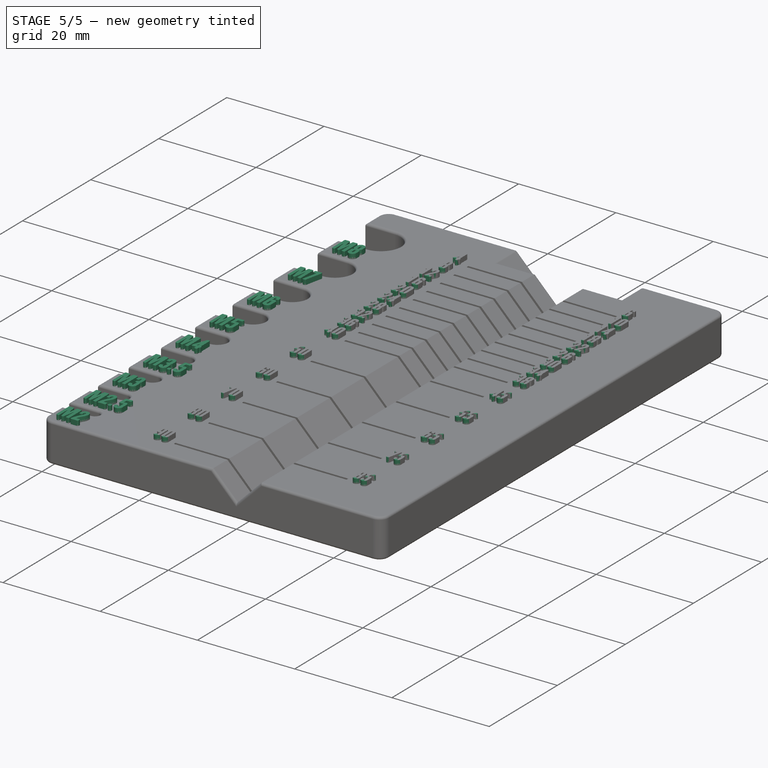
[diagram: stage 5 of 5 — iso view after this stage's code; geometry added in this stage tinted green]
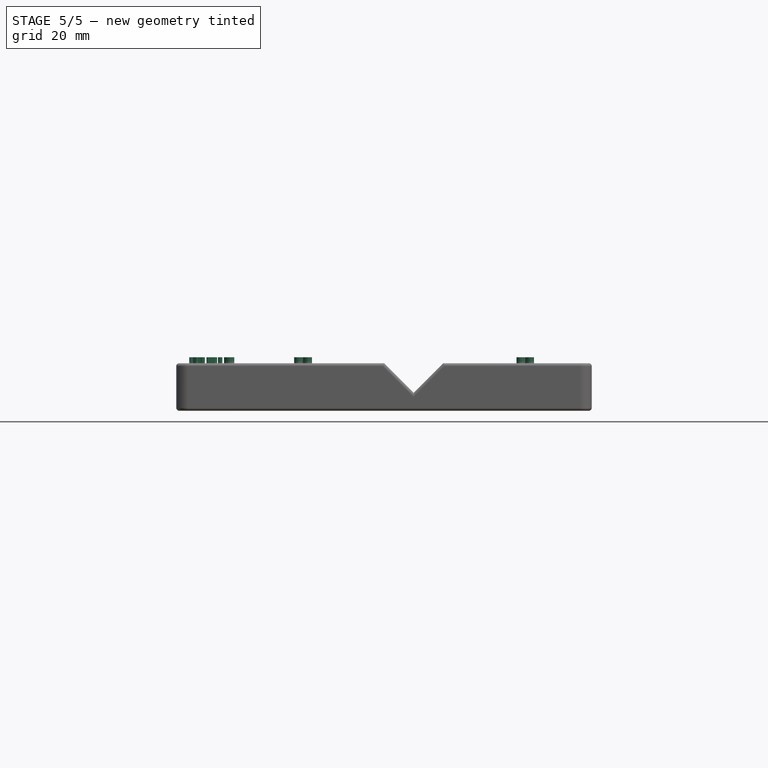
[diagram: stage 5 of 5 — front view after this stage's code; geometry added in this stage tinted green]
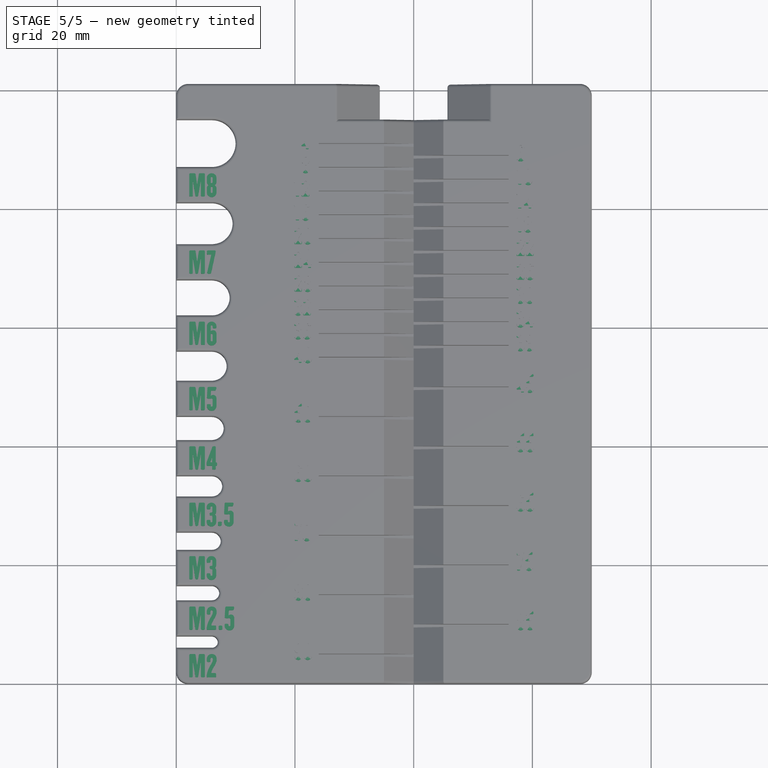
[diagram: stage 5 of 5 — top view after this stage's code; geometry added in this stage tinted green]
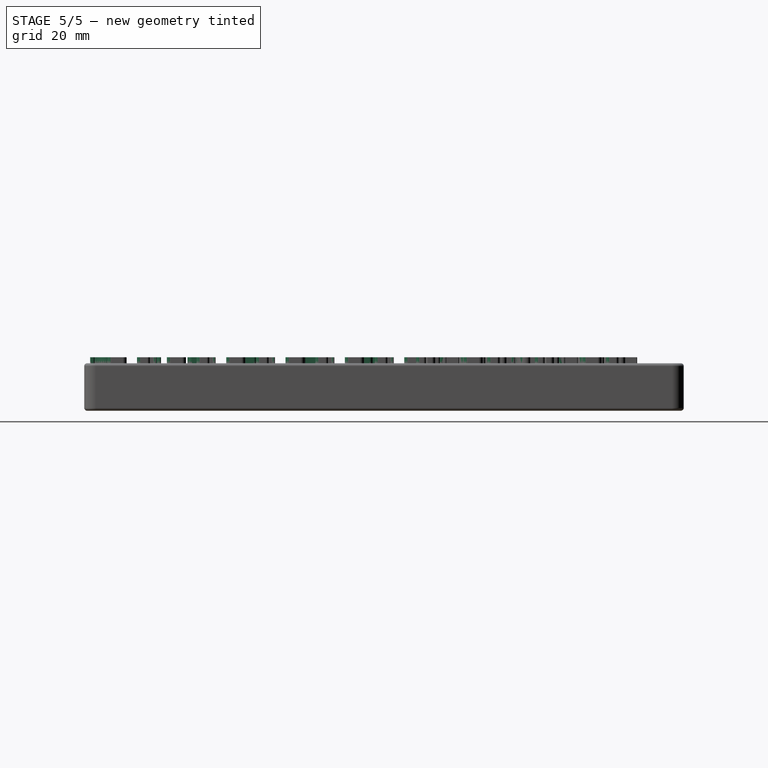
[diagram: stage 5 of 5 — right view after this stage's code; geometry added in this stage tinted green]
FEATURE [Part::Part2DObjectPython] ShapeString  # Draft 2D object (typed FeaturePython)
  FontFile = <path> screw measure/H.H. Samuel-font-defharo.ttf
  Placement = pos=(1,1,8) rot=(0,0,1;0rad)
  Size = 2
  String = M2
  Tracking = 0
FEATURE [Part::Extrusion] Extrude
  Base = -> ShapeString
  Dir = (0,0,1)
  DirMode = 2
  FaceMakerClass = Part::FaceMakerBullseye
  LengthFwd = 1
  LengthRev = 0
  Solid = false
  Symmetric = false
FEATURE [Part::Part2DObjectPython] ShapeString001  # Draft 2D object (typed FeaturePython)
  FontFile = <path> screw measure/H.H. Samuel-font-defharo.ttf
  Placement = pos=(1,9,8) rot=(0,0,1;0rad)
  Size = 2
  String = M2.5
  Tracking = 0
FEATURE [Part::Part2DObjectPython] ShapeString002  # Draft 2D object (typed FeaturePython)
  FontFile = <path> screw measure/H.H. Samuel-font-defharo.ttf
  Placement = pos=(1,17.5,8) rot=(0,0,1;0rad)
  Size = 2
  String = M3
  Tracking = 0
FEATURE [Part::Part2DObjectPython] ShapeString003  # Draft 2D object (typed FeaturePython)
  FontFile = <path> screw measure/H.H. Samuel-font-defharo.ttf
  Placement = pos=(1,26.5,8) rot=(0,0,1;0rad)
  Size = 2
  String = M3.5
  Tracking = 0
FEATURE [Part::Part2DObjectPython] ShapeString004  # Draft 2D object (typed FeaturePython)
  FontFile = <path> screw measure/H.H. Samuel-font-defharo.ttf
  Placement = pos=(1,36,8) rot=(0,0,1;0rad)
  Size = 2
  String = M4
  Tracking = 0
FEATURE [Part::Part2DObjectPython] ShapeString005  # Draft 2D object (typed FeaturePython)
  FontFile = <path> screw measure/H.H. Samuel-font-defharo.ttf
  Placement = pos=(1,46,8) rot=(0,0,1;0rad)
  Size = 2
  String = M5
  Tracking = 0
FEATURE [Part::Part2DObjectPython] ShapeString006  # Draft 2D object (typed FeaturePython)
  FontFile = <path> screw measure/H.H. Samuel-font-defharo.ttf
  Placement = pos=(1,57,8) rot=(0,0,1;0rad)
  Size = 2
  String = M6
  Tracking = 0
FEATURE [Part::Part2DObjectPython] ShapeString007  # Draft 2D object (typed FeaturePython)
  FontFile = <path> screw measure/H.H. Samuel-font-defharo.ttf
  Placement = pos=(1,69,8) rot=(0,0,1;0rad)
  Size = 2
  String = M7
  Tracking = 0
FEATURE [Part::Part2DObjectPython] ShapeString008  # Draft 2D object (typed FeaturePython)
  FontFile = <path> screw measure/H.H. Samuel-font-defharo.ttf
  Placement = pos=(1,82,8) rot=(0,0,1;0rad)
  Size = 2
  String = M8
  Tracking = 0
FEATURE [Part::Extrusion] Extrude001
  Base = -> ShapeString001
  Dir = (0,0,1)
  DirMode = 2
  FaceMakerClass = Part::FaceMakerBullseye
  LengthFwd = 1
  LengthRev = 0
  Solid = false
  Symmetric = false
FEATURE [Part::Extrusion] Extrude002
  Base = -> ShapeString002
  Dir = (0,0,1)
  DirMode = 2
  FaceMakerClass = Part::FaceMakerBullseye
  LengthFwd = 1
  LengthRev = 0
  Solid = false
  Symmetric = false
FEATURE [Part::Extrusion] Extrude003
  Base = -> ShapeString003
  Dir = (0,0,1)
  DirMode = 2
  FaceMakerClass = Part::FaceMakerBullseye
  LengthFwd = 1
  LengthRev = 0
  Solid = false
  Symmetric = false
FEATURE [Part::Extrusion] Extrude004
  Base = -> ShapeString004
  Dir = (0,0,1)
  DirMode = 2
  FaceMakerClass = Part::FaceMakerBullseye
  LengthFwd = 1
  LengthRev = 0
  Solid = false
  Symmetric = false
FEATURE [Part::Extrusion] Extrude005
  Base = -> ShapeString005
  Dir = (0,0,1)
  DirMode = 2
  FaceMakerClass = Part::FaceMakerBullseye
  LengthFwd = 1
  LengthRev = 0
  Solid = false
  Symmetric = false
FEATURE [Part::Extrusion] Extrude006
  Base = -> ShapeString006
  Dir = (0,0,1)
  DirMode = 2
  FaceMakerClass = Part::FaceMakerBullseye
  LengthFwd = 1
  LengthRev = 0
  Solid = false
  Symmetric = false
FEATURE [Part::Extrusion] Extrude007
  Base = -> ShapeString007
  Dir = (0,0,1)
  DirMode = 2
  FaceMakerClass = Part::FaceMakerBullseye
  LengthFwd = 1
  LengthRev = 0
  Solid = false
  Symmetric = false
FEATURE [Part::Extrusion] Extrude008
  Base = -> ShapeString008
  Dir = (0,0,1)
  DirMode = 2
  FaceMakerClass = Part::FaceMakerBullseye
  LengthFwd = 1
  LengthRev = 0
  Solid = false
  Symmetric = false
FEATURE [Part::MultiFuse] Fusion  label="names"
  Placement = pos=(1,0,0) rot=(0,0,1;0rad)
  Shapes = -> [Extrude,Extrude001,Extrude002,Extrude003,Extrude004,Extrude005,Extrude006,Extrude007,Extrude008]
FEATURE [Part::MultiFuse] Fusion001  label="lengths"
  Placement = pos=(0,-0.5,0) rot=(0,0,1;0rad)
  Shapes = -> [Extrude009,Extrude011,Extrude012,Extrude013,Extrude014,Extrude015,Extrude016,Extrude017,Extrude018,Extrude019,Extrude020,Extrude021,Extrude022,Extrude023,Extrude024,Extrude025,Extrude026,Extrude027,Extrude028,Extrude029,Extrude030,Extrude031,Extrude032,Extrude033,Extrude034,Extrude035,Extrude036,Extrude037,Extrude038]
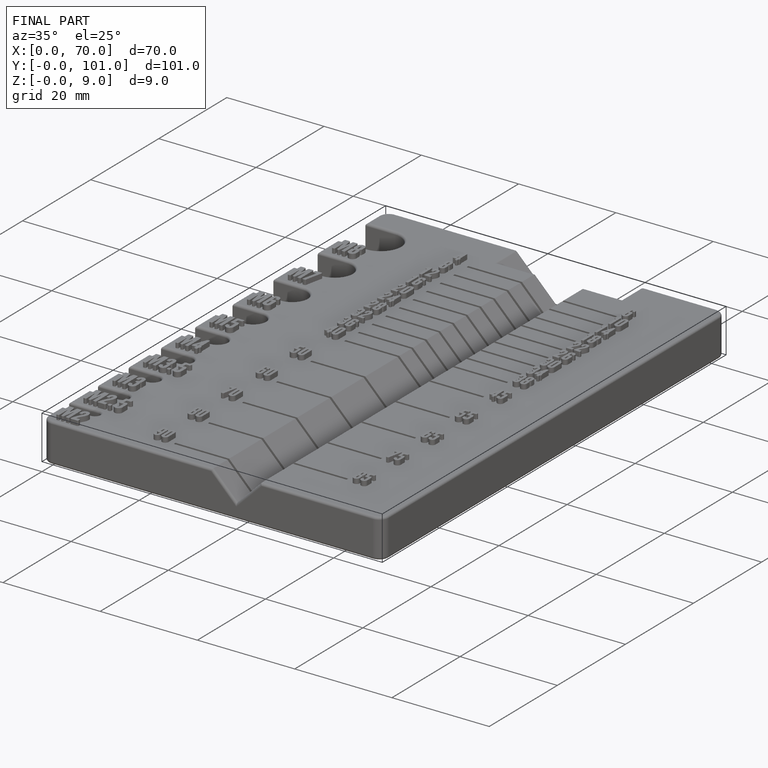
[diagram: finished part — iso view with bounding-box wireframe]
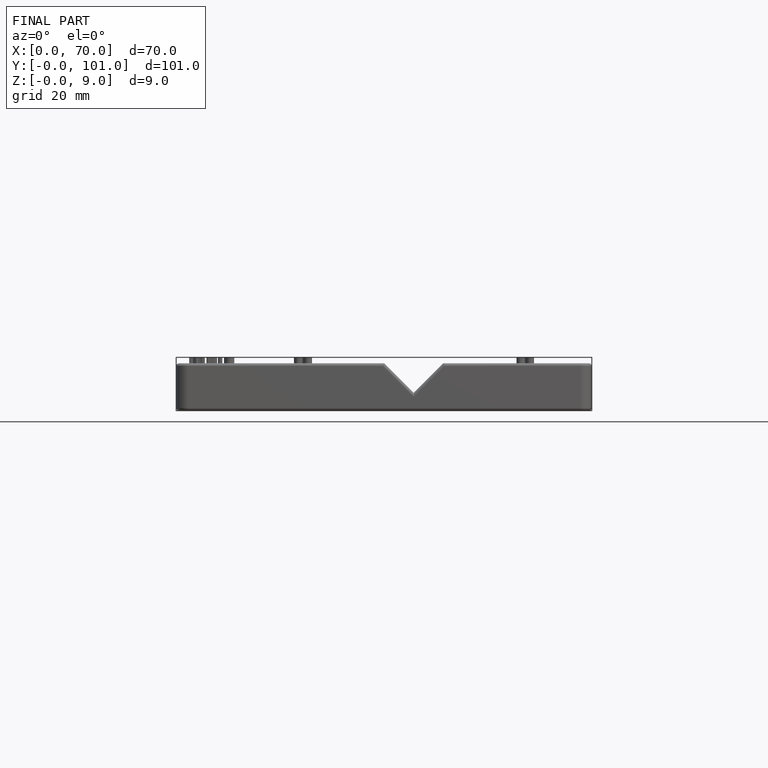
[diagram: finished part — front view with bounding-box wireframe]
